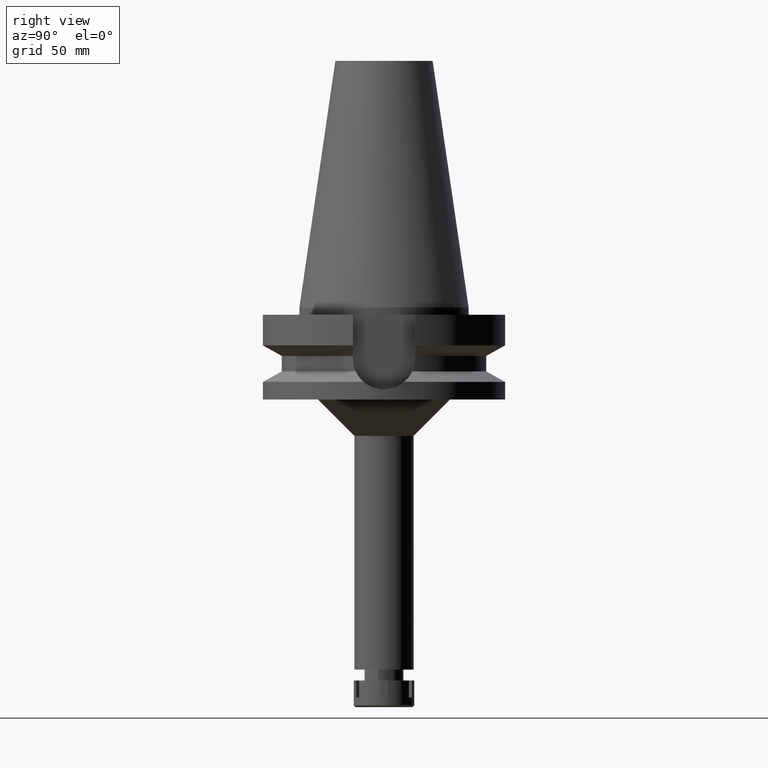
[diagram: clean part render]
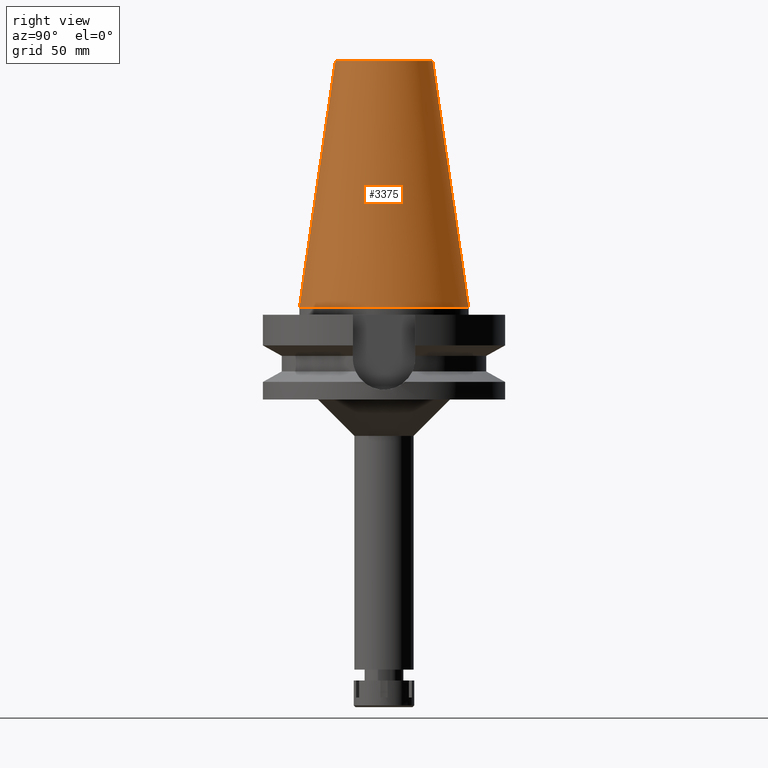
[diagram: same view with one face highlighted and labeled with its STEP entity id]
A machine part, right view. The second image highlights one B-rep face of the part: STEP entity #3375.
In plain terms, the highlighted conical surface has half-angle 8.297 deg.
Its self-contained STEP definition (entity closure, byte-faithful):
#98 = AXIS2_PLACEMENT_3D ( 'NONE', #3000, #3361, #2491 ) ;
#111 = CIRCLE ( 'NONE', #1007, 20.07942971896000017 ) ;
#172 = CARTESIAN_POINT ( 'NONE',  ( 0.0000000000000000000, -34.92499999999999716, 4.760636329592999411E-13 ) ) ;
#185 = EDGE_CURVE ( 'NONE', #2286, #2102, #111, .T. ) ;
#277 = CARTESIAN_POINT ( 'NONE',  ( 0.0000000000000000000, 34.92499999999999716, 4.760636329592999411E-13 ) ) ;
#329 = DIRECTION ( 'NONE',  ( 0.0000000000000000000, -0.1443043893538948075, -0.9895333461855641000 ) ) ;
#358 = EDGE_CURVE ( 'NONE', #2102, #761, #2606, .T. ) ;
#398 = CARTESIAN_POINT ( 'NONE',  ( 0.0000000000000000000, -20.07942971896000017, 101.7999999999999972 ) ) ;
#466 = EDGE_LOOP ( 'NONE', ( #2840, #3099, #1282, #821 ) ) ;
#507 = CONICAL_SURFACE ( 'NONE', #1930, 27.50221485948000222, 0.1448099680379422438 ) ;
#567 = DIRECTION ( 'NONE',  ( 0.0000000000000000000, -1.000000000000000000, 0.0000000000000000000 ) ) ;
#761 = VERTEX_POINT ( 'NONE', #172 ) ;
#821 = ORIENTED_EDGE ( 'NONE', *, *, #3101, .F. ) ;
#1007 = AXIS2_PLACEMENT_3D ( 'NONE', #1547, #2691, #3015 ) ;
#1128 = CARTESIAN_POINT ( 'NONE',  ( 0.0000000000000000000, 1.847992019912999597E-14, 50.89999999999999858 ) ) ;
#1282 = ORIENTED_EDGE ( 'NONE', *, *, #3617, .F. ) ;
#1455 = VECTOR ( 'NONE', #2457, 1000.000000000000114 ) ;
#1547 = CARTESIAN_POINT ( 'NONE',  ( 0.0000000000000000000, 1.847992019912999597E-14, 101.7999999999999972 ) ) ;
#1870 = CIRCLE ( 'NONE', #98, 34.92499999999999716 ) ;
#1930 = AXIS2_PLACEMENT_3D ( 'NONE', #1128, #2014, #567 ) ;
#1996 = CARTESIAN_POINT ( 'NONE',  ( 0.0000000000000000000, 20.07942971896000017, 101.7999999999999972 ) ) ;
#2014 = DIRECTION ( 'NONE',  ( 0.0000000000000000000, 0.0000000000000000000, -1.000000000000000000 ) ) ;
#2102 = VERTEX_POINT ( 'NONE', #398 ) ;
#2186 = CARTESIAN_POINT ( 'NONE',  ( 0.0000000000000000000, 20.07942971896000017, 101.7999999999999972 ) ) ;
#2215 = LINE ( 'NONE', #2186, #1455 ) ;
#2256 = FACE_OUTER_BOUND ( 'NONE', #466, .T. ) ;
#2286 = VERTEX_POINT ( 'NONE', #1996 ) ;
#2457 = DIRECTION ( 'NONE',  ( 0.0000000000000000000, 0.1443043893538948075, -0.9895333461855641000 ) ) ;
#2491 = DIRECTION ( 'NONE',  ( 0.0000000000000000000, 1.000000000000000000, 0.0000000000000000000 ) ) ;
#2545 = VECTOR ( 'NONE', #329, 1000.000000000000114 ) ;
#2606 = LINE ( 'NONE', #3691, #2545 ) ;
#2691 = DIRECTION ( 'NONE',  ( 0.0000000000000000000, 0.0000000000000000000, -1.000000000000000000 ) ) ;
#2737 = VERTEX_POINT ( 'NONE', #277 ) ;
#2840 = ORIENTED_EDGE ( 'NONE', *, *, #185, .T. ) ;
#3000 = CARTESIAN_POINT ( 'NONE',  ( 0.0000000000000000000, 1.847992019912999597E-14, 6.252776074689000785E-13 ) ) ;
#3015 = DIRECTION ( 'NONE',  ( 0.0000000000000000000, 1.000000000000000000, 0.0000000000000000000 ) ) ;
#3099 = ORIENTED_EDGE ( 'NONE', *, *, #358, .T. ) ;
#3101 = EDGE_CURVE ( 'NONE', #2286, #2737, #2215, .T. ) ;
#3361 = DIRECTION ( 'NONE',  ( 0.0000000000000000000, 0.0000000000000000000, -1.000000000000000000 ) ) ;
#3375 = ADVANCED_FACE ( 'NONE', ( #2256 ), #507, .T. ) ;
#3617 = EDGE_CURVE ( 'NONE', #2737, #761, #1870, .T. ) ;
#3691 = CARTESIAN_POINT ( 'NONE',  ( 0.0000000000000000000, -20.07942971896000017, 101.7999999999999972 ) ) ;